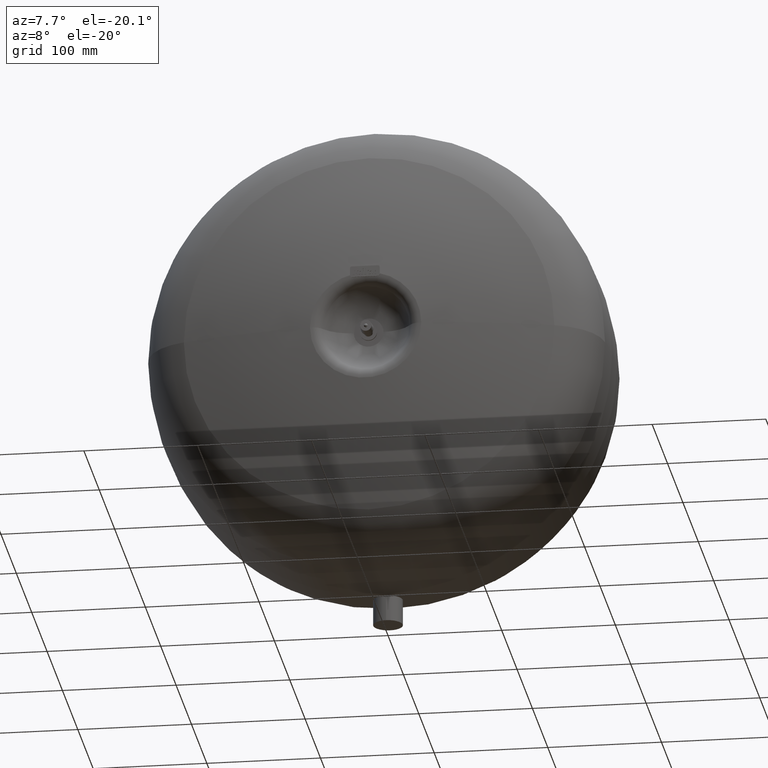
[diagram: clean part render]
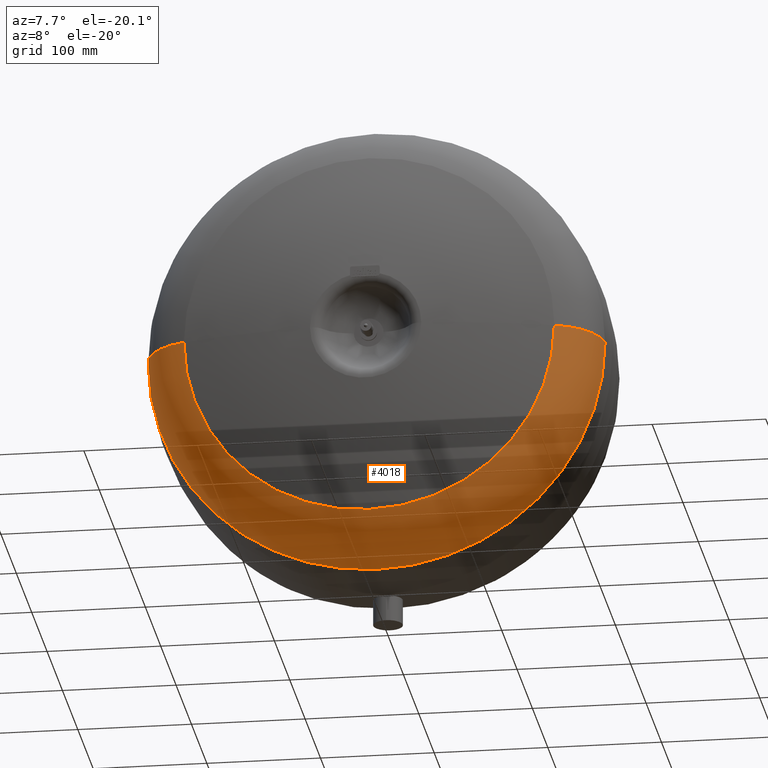
[diagram: same view with one face highlighted and labeled with its STEP entity id]
A machine part, auxiliary view. The second image highlights one B-rep face of the part: STEP entity #4018.
In plain terms, the highlighted toroidal blend (fillet) surface has major radius 146.101 mm and minor (blend) radius 55 mm.
Its self-contained STEP definition (entity closure, byte-faithful):
#3947=CARTESIAN_POINT('',(163.00000000000006,-122.99999999999991,226.00000000000006));
#3948=VERTEX_POINT('',#3947);
#3957=CARTESIAN_POINT('',(-163.00000000000006,-122.99999999999986,226.00000000000006));
#3958=VERTEX_POINT('',#3957);
#3966=CARTESIAN_POINT('',(-8.755935E-015,-122.99999999999989,226.00000000000006));
#3967=DIRECTION('',(0.0,-1.0,0.0));
#3968=DIRECTION('',(0.0,0.0,1.0));
#3969=AXIS2_PLACEMENT_3D('',#3966,#3967,#3968);
#3970=CIRCLE('',#3969,163.00000000000006);
#3971=EDGE_CURVE('',#3958,#3948,#3970,.T.);
#3976=CARTESIAN_POINT('',(8.583871E-016,-70.660337393491631,226.00000000000006));
#3977=DIRECTION('',(-1.836910E-016,-1.0,0.0));
#3978=DIRECTION('',(1.0,0.0,0.0));
#3979=AXIS2_PLACEMENT_3D('',#3976,#3977,#3978);
#3980=TOROIDAL_SURFACE('',#3979,146.10148769160784,55.0);
#3981=CARTESIAN_POINT('',(201.00000000000006,-73.999999999999901,226.00000000000006));
#3982=VERTEX_POINT('',#3981);
#3983=CARTESIAN_POINT('',(146.10148769160784,-70.660337393491659,226.00000000000006));
#3984=DIRECTION('',(0.0,0.0,1.0));
#3985=DIRECTION('',(1.0,0.0,0.0));
#3986=AXIS2_PLACEMENT_3D('',#3983,#3984,#3985);
#3987=CIRCLE('',#3986,55.0);
#3988=EDGE_CURVE('',#3948,#3982,#3987,.T.);
#3989=ORIENTED_EDGE('',*,*,#3988,.F.);
#3990=ORIENTED_EDGE('',*,*,#3971,.F.);
#3991=CARTESIAN_POINT('',(-201.00000000000006,-73.999999999999815,226.00000000000006));
#3992=VERTEX_POINT('',#3991);
#3993=CARTESIAN_POINT('',(-146.10148769160784,-70.660337393491602,226.00000000000006));
#3994=DIRECTION('',(0.0,0.0,-1.0));
#3995=DIRECTION('',(-1.0,0.0,0.0));
#3996=AXIS2_PLACEMENT_3D('',#3993,#3994,#3995);
#3997=CIRCLE('',#3996,55.0);
#3998=EDGE_CURVE('',#3958,#3992,#3997,.T.);
#3999=ORIENTED_EDGE('',*,*,#3998,.T.);
#4000=CARTESIAN_POINT('',(1.255222E-014,-73.999999999999858,25.000000000000025));
#4001=VERTEX_POINT('',#4000);
#4002=CARTESIAN_POINT('',(2.449213E-016,-73.999999999999858,226.00000000000006));
#4003=DIRECTION('',(0.0,-1.0,0.0));
#4004=DIRECTION('',(0.0,0.0,1.0));
#4005=AXIS2_PLACEMENT_3D('',#4002,#4003,#4004);
#4006=CIRCLE('',#4005,201.00000000000006);
#4007=EDGE_CURVE('',#3992,#4001,#4006,.T.);
#4008=ORIENTED_EDGE('',*,*,#4007,.T.);
#4009=CARTESIAN_POINT('',(2.449213E-016,-73.999999999999858,226.00000000000006));
#4010=DIRECTION('',(0.0,-1.0,0.0));
#4011=DIRECTION('',(0.0,0.0,1.0));
#4012=AXIS2_PLACEMENT_3D('',#4009,#4010,#4011);
#4013=CIRCLE('',#4012,201.00000000000006);
#4014=EDGE_CURVE('',#4001,#3982,#4013,.T.);
#4015=ORIENTED_EDGE('',*,*,#4014,.T.);
#4016=EDGE_LOOP('',(#3989,#3990,#3999,#4008,#4015));
#4017=FACE_OUTER_BOUND('',#4016,.T.);
#4018=ADVANCED_FACE('',(#4017),#3980,.T.);